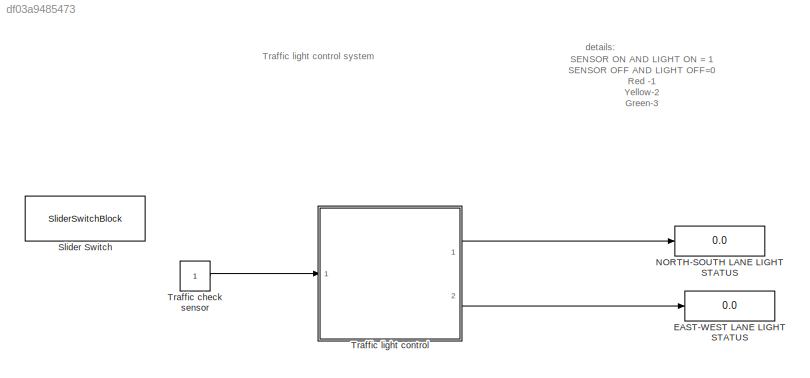
MODEL slx_df03a9485473
KIND model
CONFIG AbsTol = auto
CONFIG EnableMultiTasking = off
CONFIG FixedStep = auto
CONFIG MaxStep = auto
CONFIG MinStep = auto
CONFIG RelTol = 1e-3
CONFIG SampleTimeConstraint = Unconstrained
CONFIG SolverName = VariableStepAuto
CONFIG StartTime = 0.0
CONFIG StopTime = 10.0
BLOCK [Display] EAST-WEST LANE  LIGHT STATUS
  Decimation = 1
  Ports = [1]
BLOCK [Display] NORTH-SOUTH LANE LIGHT STATUS
  Decimation = 1
  Ports = [1]
BLOCK [SliderSwitchBlock] Slider Switch
BLOCK [Constant] Traffic check sensor 
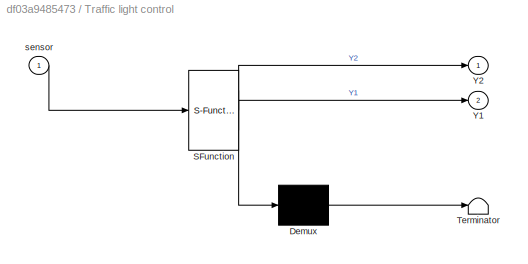
BLOCK [SubSystem] Traffic light control 
  ErrorFcn = Stateflow.Translate.translate
  PermitHierarchicalResolution = ExplicitOnly
  Ports = [1, 2]
  RequestExecContextInheritance = off
  SFBlockType = Chart
  TreatAsAtomicUnit = on
BLOCK [Demux] Traffic light control / Demux 
  Outputs = 1
  Ports = [1, 1]
BLOCK [S-Function] Traffic light control / SFunction 
  EnableBusSupport = on
  FunctionName = sf_sfun
  PortCounts = [1 3]
  Ports = [1, 3]
  SFcnIsStateOwnerBlock = off
  SFunctionDeploymentMode = off
  Tag = Stateflow S-Function 3
BLOCK [Terminator] Traffic light control / Terminator 
BLOCK [Outport] Traffic light control /Y1
  Port = 2
BLOCK [Outport] Traffic light control /Y2
BLOCK [Inport] Traffic light control /sensor
ANNOTATION (root): details :
ANNOTATION (root): Traffic light control system
ANNOTATION (root): SENSOR ON AND LIGHT ON = 1 SENSOR OFF AND LIGHT OFF=0 Red -1 Yellow-2 Green-3
LINE Traffic check sensor :1 -> Traffic light control :1
LINE Traffic light control :1 -> NORTH-SOUTH LANE LIGHT STATUS:1
LINE Traffic light control :2 -> EAST-WEST LANE  LIGHT STATUS:1
CHART Traffic light control  states=5 transitions=6
  STATE_LABEL 'stopfortraffic\nY1=RED;\nY2=GREEN;\n'
  STATE_LABEL 'stoptogo\nY1=RED;\nY2=YELLOW;\n'
  STATE_LABEL 'stop\nY1=RED;\nY2=GREEN;'
  STATE_LABEL 'gotostop\nY1=YELLOW;\nY2=RED;'
  STATE_LABEL 'go\nY1=GREEN;\nY2=RED;\n'
CHART  states=0 transitions=0
